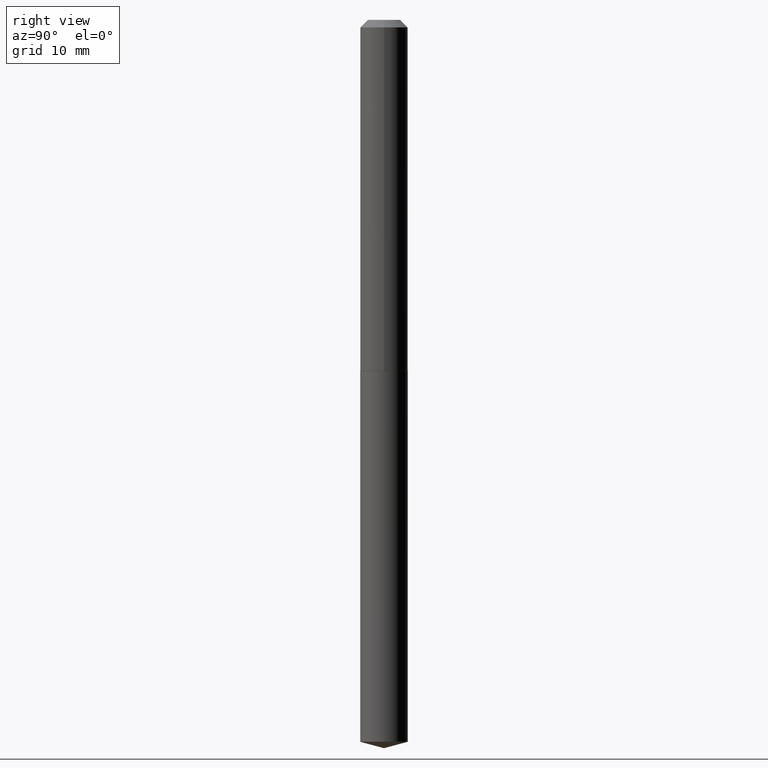
[diagram: clean part render]
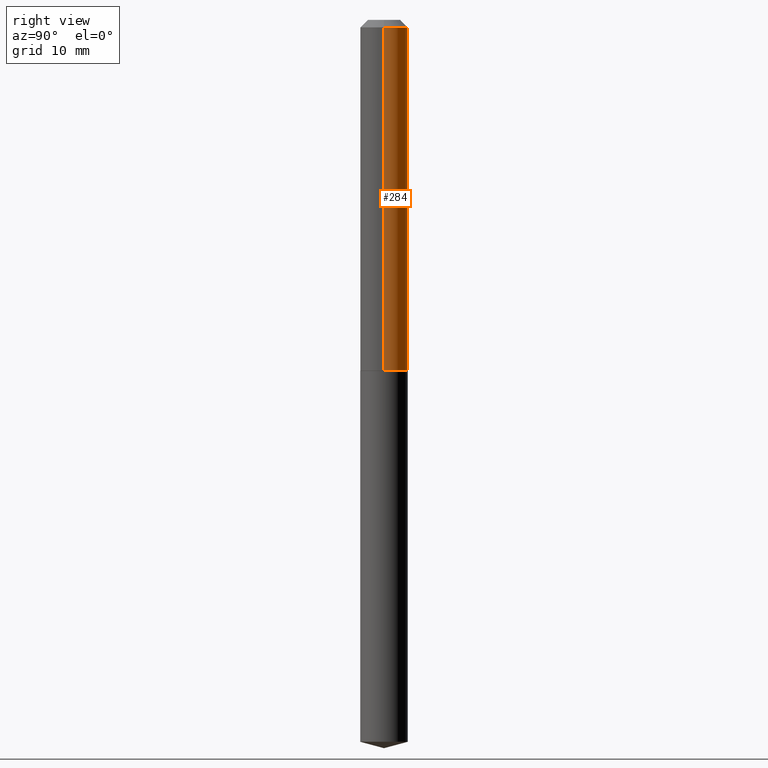
[diagram: same view with one face highlighted and labeled with its STEP entity id]
A machine part, right view. The second image highlights one B-rep face of the part: STEP entity #284.
In plain terms, the highlighted cylindrical surface (edge-blend (fillet) strip) has radius 2.4892 mm, axis along (-0, 0, 1).
Its self-contained STEP definition (entity closure, byte-faithful):
#8 = EDGE_CURVE ( 'NONE', #292, #285, #87, .T. ) ;
#16 = EDGE_LOOP ( 'NONE', ( #47, #287, #290, #319 ) ) ;
#18 = DIRECTION ( 'NONE',  ( 1.000000000000000000, -6.982962677686266711E-15, 0.000000000000000000 ) ) ;
#47 = ORIENTED_EDGE ( 'NONE', *, *, #237, .T. ) ;
#49 = VECTOR ( 'NONE', #196, 39.37007874015748143 ) ;
#53 = CARTESIAN_POINT ( 'NONE',  ( 7.642090019328598283E-31, -1.091087918388489651E-16, -0.03125000000000019429 ) ) ;
#72 = CARTESIAN_POINT ( 'NONE',  ( 0.09800000000000000377, -7.934391342521031515E-16, -0.03125000000000019429 ) ) ;
#87 = LINE ( 'NONE', #148, #173 ) ;
#89 = EDGE_CURVE ( 'NONE', #285, #134, #366, .T. ) ;
#117 = DIRECTION ( 'NONE',  ( -2.445468806185136597E-29, 3.491481338843145583E-15, 1.000000000000000000 ) ) ;
#126 = CARTESIAN_POINT ( 'NONE',  ( 3.534925159340615318E-29, -5.046936275297767188E-15, -1.445500000000000229 ) ) ;
#133 = CARTESIAN_POINT ( 'NONE',  ( 0.000000000000000000, 0.000000000000000000, 0.000000000000000000 ) ) ;
#134 = VERTEX_POINT ( 'NONE', #206 ) ;
#142 = AXIS2_PLACEMENT_3D ( 'NONE', #53, #180, #18 ) ;
#148 = CARTESIAN_POINT ( 'NONE',  ( 0.09800000000000008704, -6.843303424132548397E-16, 4.778653240280021785E-30 ) ) ;
#152 = DIRECTION ( 'NONE',  ( 1.000000000000000000, -6.982962677686271444E-15, 0.000000000000000000 ) ) ;
#161 = FACE_OUTER_BOUND ( 'NONE', #16, .T. ) ;
#173 = VECTOR ( 'NONE', #327, 39.37007874015748143 ) ;
#177 = VERTEX_POINT ( 'NONE', #386 ) ;
#180 = DIRECTION ( 'NONE',  ( -2.445468806185136597E-29, 3.491481338843145583E-15, 1.000000000000000000 ) ) ;
#196 = DIRECTION ( 'NONE',  ( -2.445468806185136877E-29, 3.491481338843145188E-15, 1.000000000000000000 ) ) ;
#198 = AXIS2_PLACEMENT_3D ( 'NONE', #126, #117, #152 ) ;
#206 = CARTESIAN_POINT ( 'NONE',  ( -0.09800000000000000377, -1.881690652523408160E-15, -0.03125000000000019429 ) ) ;
#215 = LINE ( 'NONE', #314, #49 ) ;
#237 = EDGE_CURVE ( 'NONE', #292, #177, #364, .T. ) ;
#250 = CYLINDRICAL_SURFACE ( 'NONE', #271, 0.09800000000000008704 ) ;
#271 = AXIS2_PLACEMENT_3D ( 'NONE', #133, #361, #307 ) ;
#284 = ADVANCED_FACE ( 'NONE', ( #161 ), #250, .T. ) ;
#285 = VERTEX_POINT ( 'NONE', #72 ) ;
#287 = ORIENTED_EDGE ( 'NONE', *, *, #291, .T. ) ;
#290 = ORIENTED_EDGE ( 'NONE', *, *, #89, .F. ) ;
#291 = EDGE_CURVE ( 'NONE', #177, #134, #215, .T. ) ;
#292 = VERTEX_POINT ( 'NONE', #308 ) ;
#307 = DIRECTION ( 'NONE',  ( 1.000000000000000000, -6.982962677686267499E-15, 4.876176775795936353E-29 ) ) ;
#308 = CARTESIAN_POINT ( 'NONE',  ( 0.09800000000000015643, -5.731266617711022619E-15, -1.445500000000000229 ) ) ;
#314 = CARTESIAN_POINT ( 'NONE',  ( -0.09800000000000008704, 6.963318810448988006E-16, -4.820556388449811965E-30 ) ) ;
#319 = ORIENTED_EDGE ( 'NONE', *, *, #8, .F. ) ;
#327 = DIRECTION ( 'NONE',  ( -2.445468806185136877E-29, 3.491481338843145188E-15, 1.000000000000000000 ) ) ;
#361 = DIRECTION ( 'NONE',  ( -2.445468806185136597E-29, 3.491481338843145583E-15, 1.000000000000000000 ) ) ;
#364 = CIRCLE ( 'NONE', #198, 0.09800000000000015643 ) ;
#366 = CIRCLE ( 'NONE', #142, 0.09800000000000000377 ) ;
#386 = CARTESIAN_POINT ( 'NONE',  ( -0.09800000000000015643, -4.350604394252867598E-15, -1.445500000000000229 ) ) ;